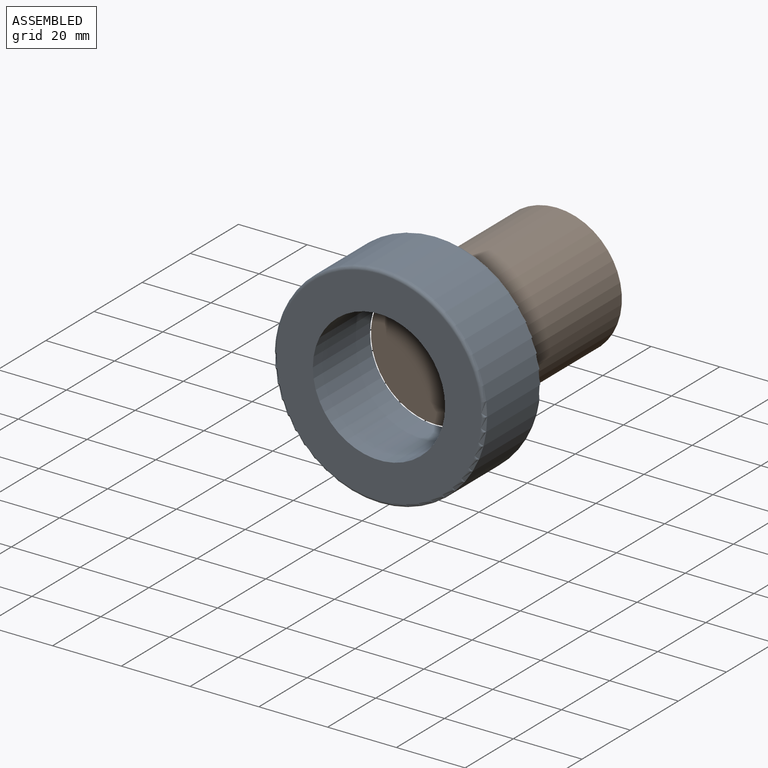
[diagram: assembled view]
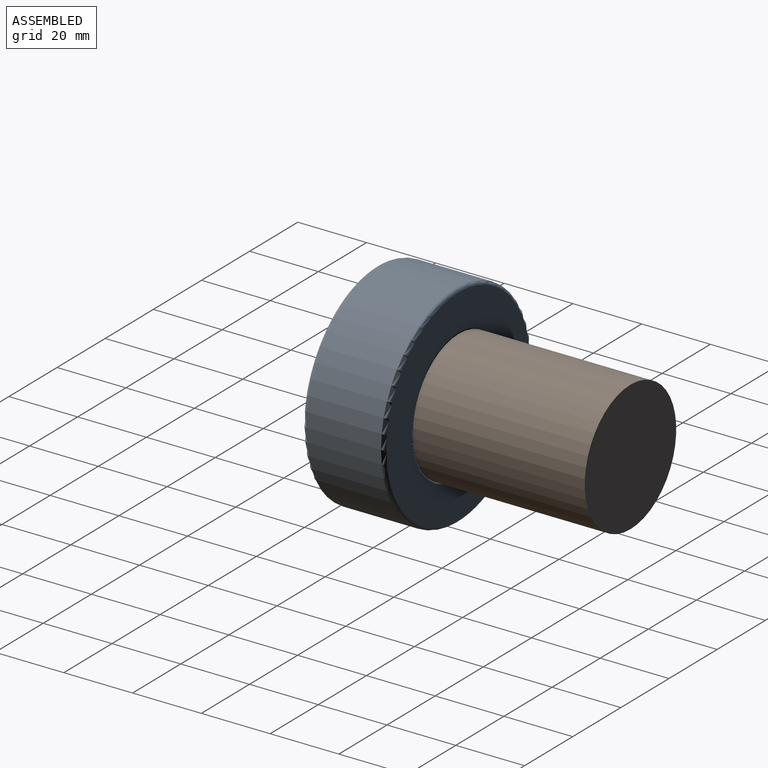
[diagram: assembled view, second angle]
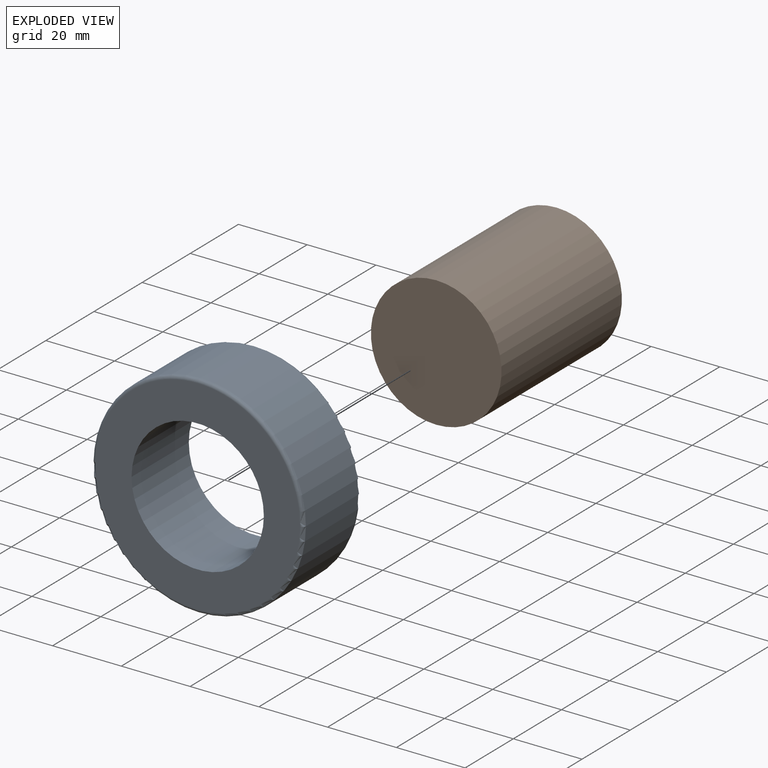
[diagram: exploded view]
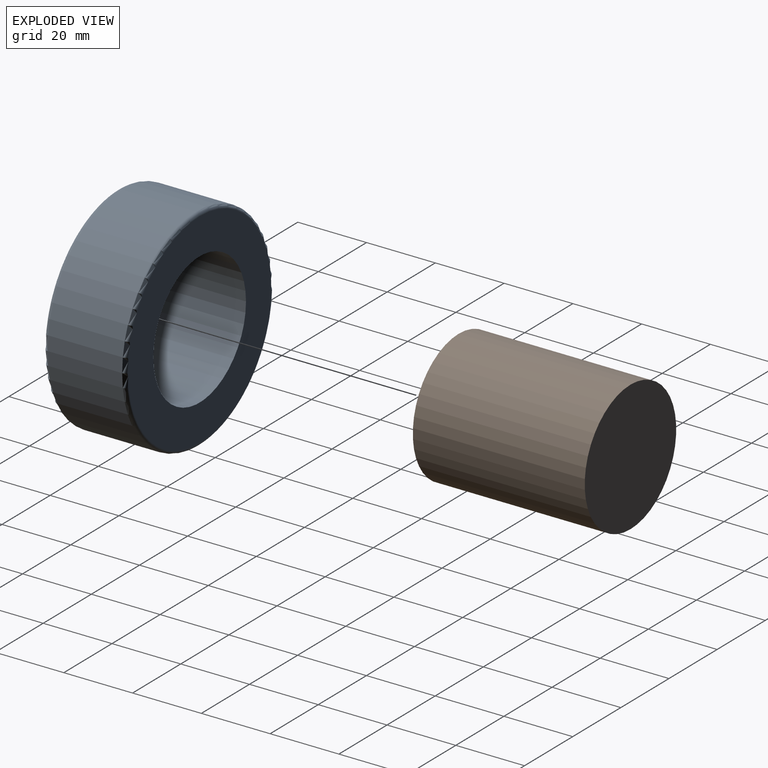
[diagram: exploded view, second angle]
ASSEMBLY  parts=2 mates=2
PART A: 6 faces, bbox 66.6x23.8x66.6 mm
  f0: cylinder r=30.76mm len=61.53mm, axis (0,-1,0), area 4209.3mm2, adj f4,f5
  f1: plane 59.53x59.53mm, normal (0,-1,0), area 1620.2mm2, adj f2,f4
  f2: cylinder r=19.24mm len=38.48mm, axis (0,-1,0), area 2874.1mm2, adj f1,f3
  f3: plane 59.53x59.53mm, normal (0,1,0), area 1620.2mm2, adj f2,f5
  f4: torus R=29.76mm, axis (0,-1,0), area 300mm2, adj f0,f1
  f5: torus R=29.76mm, axis (0,1,0), area 300mm2, adj f0,f3
PART B: 3 faces, bbox 38x50x38 mm
  f0: cylinder r=19mm len=50mm, axis (0,1,0), area 5969mm2, adj f1,f2
  f1: plane 38x38mm, normal (0,-1,0), area 1134.1mm2, adj f0
  f2: plane 38x38mm, normal (0,1,0), area 1134.1mm2, adj f0
PLACE A t=(0,18.91,-0.1)mm
PLACE B t=(0,80.8,-0.1)mm
MATE cylindrical B.f0 <-> A.f0  axis (0,1,0) through (0,55.8,-0.1)mm
MATE fastened A.f0 <-> B.f0  axis (0,1,0) through (0,30.8,-0.1)mm
